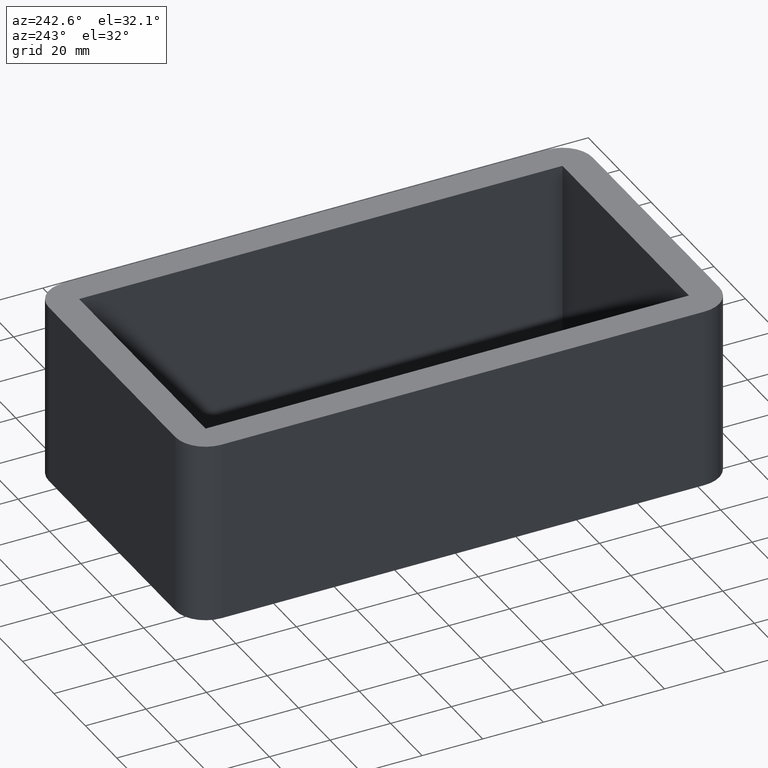
[diagram: clean part render]
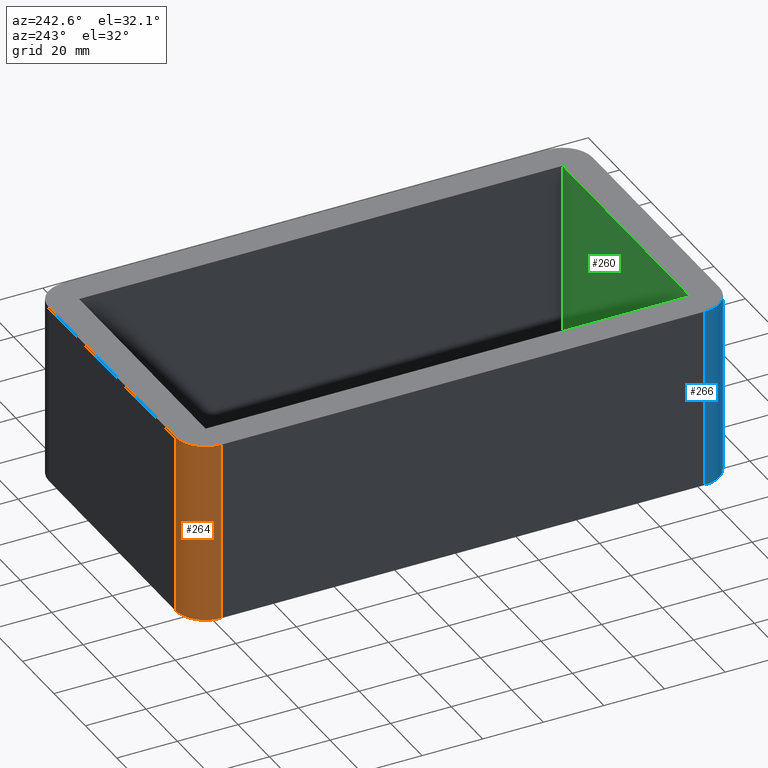
[diagram: same view with three faces highlighted in distinct colors, each labeled with its STEP entity id]
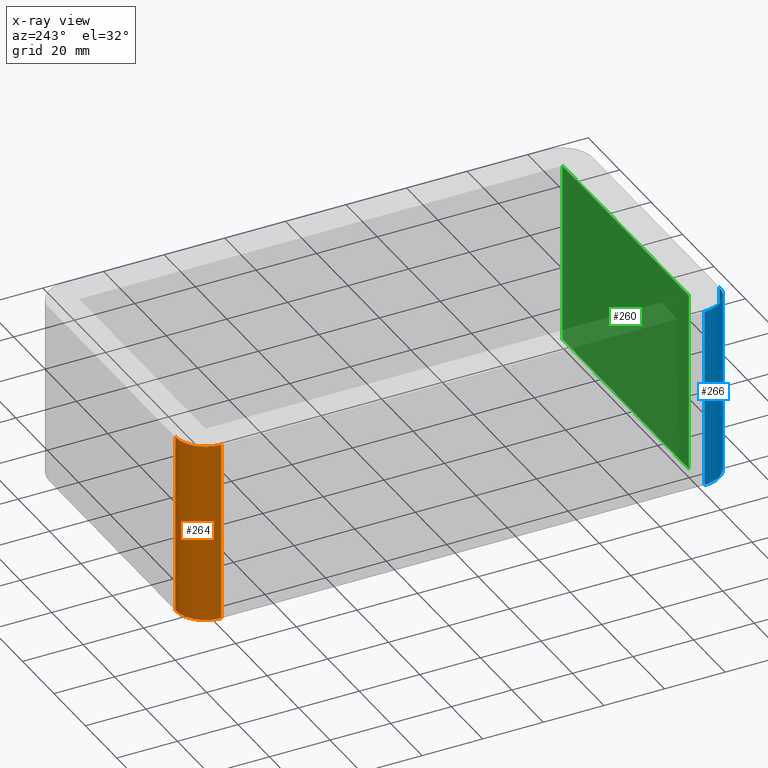
[diagram: x-ray of the same camera — body ghosted, the three highlighted faces saturated]
A machine part, auxiliary view with three faces highlighted in distinct colors.
The next image is the same camera in x-ray (body ghosted, the three faces saturated) — at least one of them is partly hidden behind the body in this view.
Their STEP definitions:

[orange] entity #264 — the highlighted cylindrical surface (edge-blend (fillet) strip) has radius 10 mm, axis along (0, 0, -1).
#21=CIRCLE('',#302,10.);
#22=CIRCLE('',#304,10.);
#26=CYLINDRICAL_SURFACE('',#303,10.);
#36=FACE_OUTER_BOUND('',#51,.T.);
#51=EDGE_LOOP('',(#211,#212,#213,#214));
#74=LINE('',#425,#102);
#79=LINE('',#441,#107);
#102=VECTOR('',#346,10.);
#107=VECTOR('',#361,10.);
#127=VERTEX_POINT('',#422);
#128=VERTEX_POINT('',#424);
#133=VERTEX_POINT('',#436);
#134=VERTEX_POINT('',#440);
#156=EDGE_CURVE('',#128,#127,#74,.T.);
#163=EDGE_CURVE('',#127,#133,#21,.T.);
#164=EDGE_CURVE('',#133,#134,#79,.T.);
#165=EDGE_CURVE('',#134,#128,#22,.T.);
#211=ORIENTED_EDGE('',*,*,#163,.T.);
#212=ORIENTED_EDGE('',*,*,#164,.T.);
#213=ORIENTED_EDGE('',*,*,#165,.T.);
#214=ORIENTED_EDGE('',*,*,#156,.T.);
#264=ADVANCED_FACE('',(#36),#26,.T.);
#302=AXIS2_PLACEMENT_3D('',#438,#357,#358);
#303=AXIS2_PLACEMENT_3D('',#439,#359,#360);
#304=AXIS2_PLACEMENT_3D('',#442,#362,#363);
#346=DIRECTION('',(0.,0.,-1.));
#357=DIRECTION('center_axis',(0.,0.,1.));
#358=DIRECTION('ref_axis',(-0.707106781186547,0.707106781186547,0.));
#359=DIRECTION('center_axis',(0.,0.,-1.));
#360=DIRECTION('ref_axis',(-0.707106781186547,0.707106781186547,0.));
#361=DIRECTION('',(0.,0.,1.));
#362=DIRECTION('center_axis',(0.,0.,-1.));
#363=DIRECTION('ref_axis',(-0.707106781186547,0.707106781186547,0.));
#422=CARTESIAN_POINT('',(-40.2499999999998,89.7500000000002,-60.));
#424=CARTESIAN_POINT('',(-40.2499999999998,89.7500000000002,0.));
#425=CARTESIAN_POINT('',(-40.2499999999998,89.7500000000002,0.));
#436=CARTESIAN_POINT('',(-50.2499999999998,79.7500000000002,-60.));
#438=CARTESIAN_POINT('Origin',(-40.2499999999998,79.7500000000002,-60.));
#439=CARTESIAN_POINT('Origin',(-40.2499999999998,79.7500000000002,0.));
#440=CARTESIAN_POINT('',(-50.2499999999998,79.7500000000002,0.));
#441=CARTESIAN_POINT('',(-50.2499999999998,79.7500000000002,0.));
#442=CARTESIAN_POINT('Origin',(-40.2499999999998,79.7500000000002,0.));

[blue] entity #266 — the highlighted cylindrical surface (edge-blend (fillet) strip) has radius 10 mm, axis along (0, 0, -1).
#20=CIRCLE('',#301,10.);
#23=CIRCLE('',#307,10.);
#27=CYLINDRICAL_SURFACE('',#306,10.);
#38=FACE_OUTER_BOUND('',#53,.T.);
#53=EDGE_LOOP('',(#219,#220,#221,#222));
#80=LINE('',#445,#108);
#82=LINE('',#449,#110);
#108=VECTOR('',#366,10.);
#110=VECTOR('',#370,10.);
#131=VERTEX_POINT('',#432);
#132=VERTEX_POINT('',#434);
#135=VERTEX_POINT('',#444);
#136=VERTEX_POINT('',#448);
#161=EDGE_CURVE('',#132,#131,#20,.T.);
#166=EDGE_CURVE('',#135,#132,#80,.T.);
#168=EDGE_CURVE('',#131,#136,#82,.T.);
#169=EDGE_CURVE('',#136,#135,#23,.T.);
#219=ORIENTED_EDGE('',*,*,#161,.T.);
#220=ORIENTED_EDGE('',*,*,#168,.T.);
#221=ORIENTED_EDGE('',*,*,#169,.T.);
#222=ORIENTED_EDGE('',*,*,#166,.T.);
#266=ADVANCED_FACE('',(#38),#27,.T.);
#301=AXIS2_PLACEMENT_3D('',#435,#354,#355);
#306=AXIS2_PLACEMENT_3D('',#447,#368,#369);
#307=AXIS2_PLACEMENT_3D('',#450,#371,#372);
#354=DIRECTION('center_axis',(0.,0.,1.));
#355=DIRECTION('ref_axis',(-0.707106781186547,-0.707106781186547,0.));
#366=DIRECTION('',(0.,0.,-1.));
#368=DIRECTION('center_axis',(0.,0.,-1.));
#369=DIRECTION('ref_axis',(-0.707106781186547,-0.707106781186547,0.));
#370=DIRECTION('',(0.,0.,1.));
#371=DIRECTION('center_axis',(0.,0.,-1.));
#372=DIRECTION('ref_axis',(-0.707106781186547,-0.707106781186547,0.));
#432=CARTESIAN_POINT('',(-40.2499999999998,-89.7499999999999,-60.));
#434=CARTESIAN_POINT('',(-50.2499999999998,-79.7499999999999,-60.));
#435=CARTESIAN_POINT('Origin',(-40.2499999999998,-79.7499999999999,-60.));
#444=CARTESIAN_POINT('',(-50.2499999999998,-79.7499999999999,0.));
#445=CARTESIAN_POINT('',(-50.2499999999998,-79.7499999999999,0.));
#447=CARTESIAN_POINT('Origin',(-40.2499999999998,-79.7499999999999,0.));
#448=CARTESIAN_POINT('',(-40.2499999999998,-89.7499999999999,0.));
#449=CARTESIAN_POINT('',(-40.2499999999998,-89.7499999999999,0.));
#450=CARTESIAN_POINT('Origin',(-40.2499999999998,-79.7499999999999,0.));

[green] entity #260 — the highlighted planar face has unit normal (0, -1, 0).
#32=FACE_OUTER_BOUND('',#46,.T.);
#46=EDGE_LOOP('',(#187,#188,#189,#190));
#60=LINE('',#393,#88);
#68=LINE('',#408,#96);
#69=LINE('',#410,#97);
#70=LINE('',#411,#98);
#88=VECTOR('',#318,10.);
#96=VECTOR('',#330,10.);
#97=VECTOR('',#333,10.);
#98=VECTOR('',#334,10.);
#115=VERTEX_POINT('',#389);
#117=VERTEX_POINT('',#392);
#121=VERTEX_POINT('',#404);
#122=VERTEX_POINT('',#406);
#140=EDGE_CURVE('',#117,#115,#60,.T.);
#148=EDGE_CURVE('',#122,#121,#68,.T.);
#149=EDGE_CURVE('',#121,#115,#69,.T.);
#150=EDGE_CURVE('',#117,#122,#70,.T.);
#187=ORIENTED_EDGE('',*,*,#149,.F.);
#188=ORIENTED_EDGE('',*,*,#148,.F.);
#189=ORIENTED_EDGE('',*,*,#150,.F.);
#190=ORIENTED_EDGE('',*,*,#140,.T.);
#250=PLANE('',#294);
#260=ADVANCED_FACE('',(#32),#250,.F.);
#294=AXIS2_PLACEMENT_3D('',#409,#331,#332);
#318=DIRECTION('',(0.,0.,-1.));
#330=DIRECTION('',(0.,0.,-1.));
#331=DIRECTION('center_axis',(4.4133089177646E-16,-1.,0.));
#332=DIRECTION('ref_axis',(-1.,-4.4133089177646E-16,0.));
#333=DIRECTION('',(1.,4.4133089177646E-16,0.));
#334=DIRECTION('',(-1.,-4.4133089177646E-16,0.));
#389=CARTESIAN_POINT('',(40.2500000000036,-79.750000000009,-60.));
#392=CARTESIAN_POINT('',(40.2500000000036,-79.750000000009,0.));
#393=CARTESIAN_POINT('',(40.2500000000036,-79.750000000009,0.));
#404=CARTESIAN_POINT('',(-40.2499999999964,-79.7500000000091,-60.));
#406=CARTESIAN_POINT('',(-40.2499999999964,-79.7500000000091,0.));
#408=CARTESIAN_POINT('',(-40.2499999999964,-79.7500000000091,0.));
#409=CARTESIAN_POINT('Origin',(40.2500000000036,-79.750000000009,0.));
#410=CARTESIAN_POINT('',(20.1250000000019,-79.7500000000091,-60.));
#411=CARTESIAN_POINT('',(20.1250000000019,-79.7500000000091,0.));